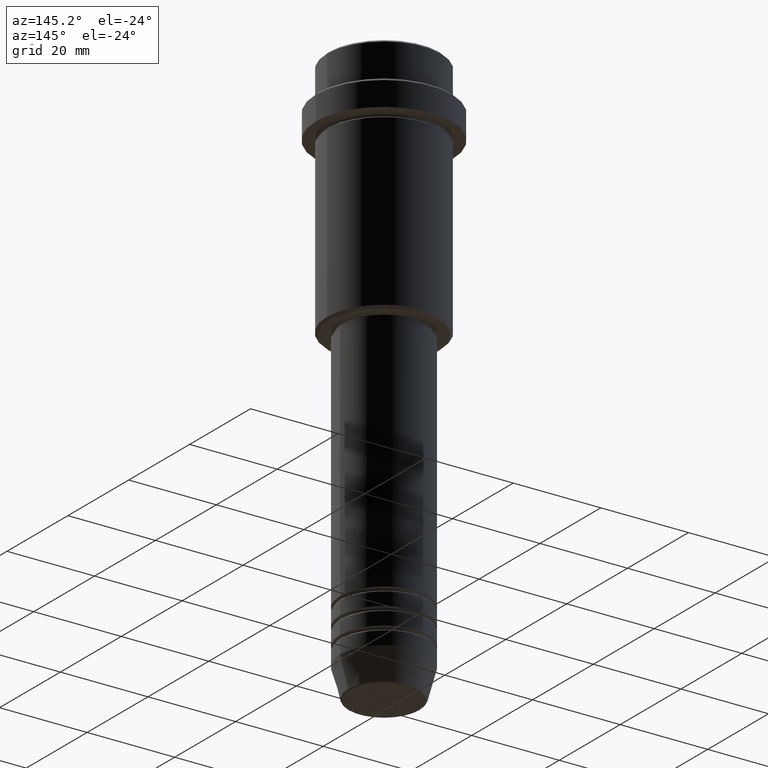
[diagram: clean part render]
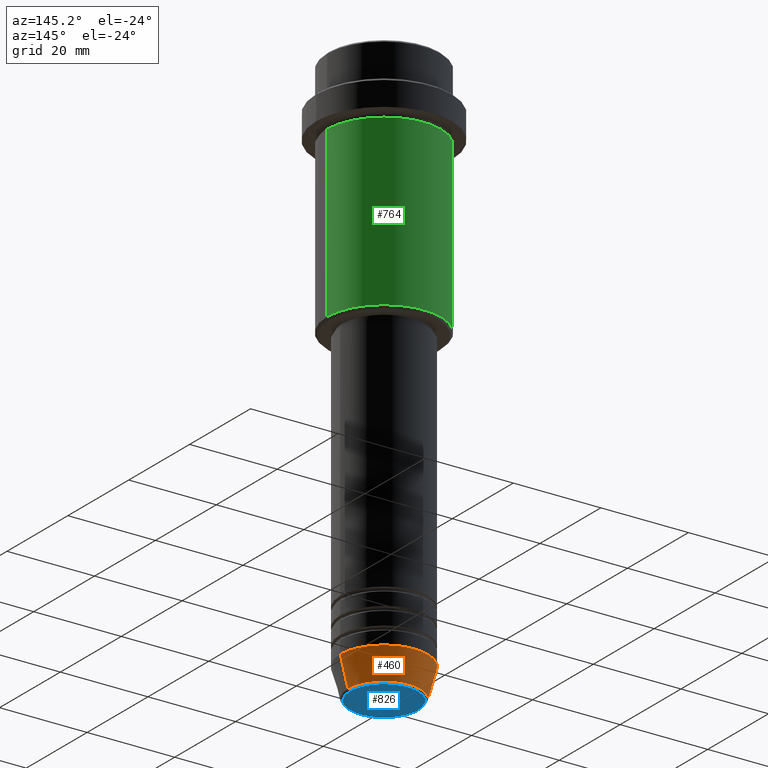
[diagram: same view with three faces highlighted in distinct colors, each labeled with its STEP entity id]
A machine part, auxiliary view with three faces highlighted in distinct colors.
Their STEP definitions:

[orange] entity #460 — the highlighted conical surface has half-angle 15 deg.
#6 = EDGE_CURVE ( 'NONE', #159, #592, #102, .T. ) ;
#56 = CARTESIAN_POINT ( 'NONE',  ( 0.000000000000000000, 0.000000000000000000, -129.6294095225512422 ) ) ;
#73 = DIRECTION ( 'NONE',  ( -0.000000000000000000, -0.000000000000000000, 1.000000000000000000 ) ) ;
#77 = CARTESIAN_POINT ( 'NONE',  ( 0.000000000000000000, 0.000000000000000000, -123.0000000000000000 ) ) ;
#94 = CARTESIAN_POINT ( 'NONE',  ( 0.000000000000000000, 0.000000000000000000, -123.0000000000000000 ) ) ;
#102 = LINE ( 'NONE', #439, #575 ) ;
#121 = EDGE_LOOP ( 'NONE', ( #885, #377, #663, #921 ) ) ;
#159 = VERTEX_POINT ( 'NONE', #583 ) ;
#172 = DIRECTION ( 'NONE',  ( -0.000000000000000000, -0.000000000000000000, 1.000000000000000000 ) ) ;
#369 = CIRCLE ( 'NONE', #949, 8.223655072137191269 ) ;
#377 = ORIENTED_EDGE ( 'NONE', *, *, #1195, .T. ) ;
#412 = DIRECTION ( 'NONE',  ( -0.2588190451025213501, 3.169619151431772337E-17, 0.9659258262890680902 ) ) ;
#429 = DIRECTION ( 'NONE',  ( 1.000000000000000000, 0.000000000000000000, 0.000000000000000000 ) ) ;
#439 = CARTESIAN_POINT ( 'NONE',  ( 10.00000000000000000, 0.000000000000000000, -123.0000000000000000 ) ) ;
#460 = ADVANCED_FACE ( 'NONE', ( #1070 ), #1301, .T. ) ;
#488 = CARTESIAN_POINT ( 'NONE',  ( -10.00000000000000000, 1.224646799147353256E-15, -123.0000000000000000 ) ) ;
#500 = VECTOR ( 'NONE', #412, 1000.000000000000000 ) ;
#523 = DIRECTION ( 'NONE',  ( -0.000000000000000000, -0.000000000000000000, 1.000000000000000000 ) ) ;
#530 = CIRCLE ( 'NONE', #928, 10.00000000000000000 ) ;
#575 = VECTOR ( 'NONE', #1184, 1000.000000000000000 ) ;
#583 = CARTESIAN_POINT ( 'NONE',  ( 8.223655072137191269, 0.000000000000000000, -129.6294095225512422 ) ) ;
#592 = VERTEX_POINT ( 'NONE', #1413 ) ;
#663 = ORIENTED_EDGE ( 'NONE', *, *, #977, .F. ) ;
#800 = EDGE_CURVE ( 'NONE', #159, #1344, #369, .T. ) ;
#885 = ORIENTED_EDGE ( 'NONE', *, *, #800, .T. ) ;
#921 = ORIENTED_EDGE ( 'NONE', *, *, #6, .F. ) ;
#928 = AXIS2_PLACEMENT_3D ( 'NONE', #77, #523, #1094 ) ;
#949 = AXIS2_PLACEMENT_3D ( 'NONE', #56, #172, #1353 ) ;
#977 = EDGE_CURVE ( 'NONE', #592, #1086, #530, .T. ) ;
#1036 = AXIS2_PLACEMENT_3D ( 'NONE', #94, #73, #429 ) ;
#1055 = CARTESIAN_POINT ( 'NONE',  ( -10.00000000000000000, 1.224646799147353256E-15, -123.0000000000000000 ) ) ;
#1070 = FACE_OUTER_BOUND ( 'NONE', #121, .T. ) ;
#1073 = CARTESIAN_POINT ( 'NONE',  ( -8.223655072137191269, 1.115877042642912054E-15, -129.6294095225512422 ) ) ;
#1086 = VERTEX_POINT ( 'NONE', #488 ) ;
#1094 = DIRECTION ( 'NONE',  ( 1.000000000000000000, 0.000000000000000000, 0.000000000000000000 ) ) ;
#1141 = LINE ( 'NONE', #1055, #500 ) ;
#1184 = DIRECTION ( 'NONE',  ( 0.2588190451025213501, 0.000000000000000000, 0.9659258262890680902 ) ) ;
#1195 = EDGE_CURVE ( 'NONE', #1344, #1086, #1141, .T. ) ;
#1301 = CONICAL_SURFACE ( 'NONE', #1036, 10.00000000000000000, 0.2617993877991500740 ) ;
#1344 = VERTEX_POINT ( 'NONE', #1073 ) ;
#1353 = DIRECTION ( 'NONE',  ( 1.000000000000000000, 0.000000000000000000, 0.000000000000000000 ) ) ;
#1413 = CARTESIAN_POINT ( 'NONE',  ( 10.00000000000000000, 0.000000000000000000, -123.0000000000000000 ) ) ;

[blue] entity #826 — the highlighted planar face has unit normal (0, -0, 1).
#10 = CARTESIAN_POINT ( 'NONE',  ( 7.740692158992654726, 0.000000000000000000, -130.0000000000000000 ) ) ;
#65 = CARTESIAN_POINT ( 'NONE',  ( 0.000000000000000000, 0.000000000000000000, -130.0000000000000000 ) ) ;
#131 = ORIENTED_EDGE ( 'NONE', *, *, #1296, .T. ) ;
#151 = VERTEX_POINT ( 'NONE', #10 ) ;
#161 = AXIS2_PLACEMENT_3D ( 'NONE', #65, #490, #940 ) ;
#165 = CARTESIAN_POINT ( 'NONE',  ( -7.740692158992654726, 9.775343368540039135E-16, -130.0000000000000000 ) ) ;
#190 = CARTESIAN_POINT ( 'NONE',  ( 0.000000000000000000, 0.000000000000000000, -130.0000000000000000 ) ) ;
#330 = EDGE_LOOP ( 'NONE', ( #1044, #131 ) ) ;
#413 = CIRCLE ( 'NONE', #606, 7.740692158992654726 ) ;
#490 = DIRECTION ( 'NONE',  ( 0.000000000000000000, -0.000000000000000000, 1.000000000000000000 ) ) ;
#532 = DIRECTION ( 'NONE',  ( 1.000000000000000000, 0.000000000000000000, 0.000000000000000000 ) ) ;
#606 = AXIS2_PLACEMENT_3D ( 'NONE', #655, #1001, #532 ) ;
#643 = AXIS2_PLACEMENT_3D ( 'NONE', #190, #944, #1068 ) ;
#655 = CARTESIAN_POINT ( 'NONE',  ( 0.000000000000000000, 0.000000000000000000, -130.0000000000000000 ) ) ;
#826 = ADVANCED_FACE ( 'NONE', ( #929 ), #1263, .F. ) ;
#929 = FACE_OUTER_BOUND ( 'NONE', #330, .T. ) ;
#940 = DIRECTION ( 'NONE',  ( 1.000000000000000000, 0.000000000000000000, 0.000000000000000000 ) ) ;
#944 = DIRECTION ( 'NONE',  ( 0.000000000000000000, 0.000000000000000000, -1.000000000000000000 ) ) ;
#1001 = DIRECTION ( 'NONE',  ( 0.000000000000000000, 0.000000000000000000, -1.000000000000000000 ) ) ;
#1044 = ORIENTED_EDGE ( 'NONE', *, *, #1346, .T. ) ;
#1068 = DIRECTION ( 'NONE',  ( 1.000000000000000000, 0.000000000000000000, 0.000000000000000000 ) ) ;
#1120 = VERTEX_POINT ( 'NONE', #165 ) ;
#1145 = CIRCLE ( 'NONE', #643, 7.740692158992654726 ) ;
#1263 = PLANE ( 'NONE',  #161 ) ;
#1296 = EDGE_CURVE ( 'NONE', #1120, #151, #1145, .T. ) ;
#1346 = EDGE_CURVE ( 'NONE', #151, #1120, #413, .T. ) ;

[green] entity #764 — the highlighted cylindrical surface (partial cylindrical patch) has radius 13 mm, axis along (-0, -0, 1).
#29 = CARTESIAN_POINT ( 'NONE',  ( 0.000000000000000000, 0.000000000000000000, -54.49999999999996447 ) ) ;
#43 = DIRECTION ( 'NONE',  ( 1.000000000000000000, 0.000000000000000000, 0.000000000000000000 ) ) ;
#51 = ORIENTED_EDGE ( 'NONE', *, *, #588, .F. ) ;
#64 = VERTEX_POINT ( 'NONE', #750 ) ;
#106 = VECTOR ( 'NONE', #192, 1000.000000000000000 ) ;
#136 = LINE ( 'NONE', #1330, #1033 ) ;
#177 = CARTESIAN_POINT ( 'NONE',  ( 13.00000000000000000, 0.000000000000000000, -54.49999999999996447 ) ) ;
#192 = DIRECTION ( 'NONE',  ( -0.000000000000000000, -0.000000000000000000, 1.000000000000000000 ) ) ;
#221 = EDGE_CURVE ( 'NONE', #64, #724, #136, .T. ) ;
#256 = VERTEX_POINT ( 'NONE', #686 ) ;
#285 = DIRECTION ( 'NONE',  ( -0.000000000000000000, -0.000000000000000000, 1.000000000000000000 ) ) ;
#325 = CARTESIAN_POINT ( 'NONE',  ( 13.00000000000000000, 0.000000000000000000, 0.000000000000000000 ) ) ;
#495 = CARTESIAN_POINT ( 'NONE',  ( 0.000000000000000000, 0.000000000000000000, 0.000000000000000000 ) ) ;
#519 = EDGE_CURVE ( 'NONE', #801, #256, #1082, .T. ) ;
#587 = DIRECTION ( 'NONE',  ( -0.000000000000000000, -0.000000000000000000, 1.000000000000000000 ) ) ;
#588 = EDGE_CURVE ( 'NONE', #256, #724, #603, .T. ) ;
#603 = CIRCLE ( 'NONE', #759, 13.00000000000000000 ) ;
#686 = CARTESIAN_POINT ( 'NONE',  ( 13.00000000000000000, 0.000000000000000000, -16.00000000000000000 ) ) ;
#716 = CIRCLE ( 'NONE', #973, 13.00000000000000000 ) ;
#724 = VERTEX_POINT ( 'NONE', #1017 ) ;
#742 = ORIENTED_EDGE ( 'NONE', *, *, #1155, .T. ) ;
#750 = CARTESIAN_POINT ( 'NONE',  ( -13.00000000000000000, 1.592040838891559095E-15, -54.49999999999996447 ) ) ;
#759 = AXIS2_PLACEMENT_3D ( 'NONE', #980, #1193, #1089 ) ;
#764 = ADVANCED_FACE ( 'NONE', ( #1359 ), #955, .T. ) ;
#801 = VERTEX_POINT ( 'NONE', #177 ) ;
#868 = EDGE_LOOP ( 'NONE', ( #742, #1016, #51, #1390 ) ) ;
#955 = CYLINDRICAL_SURFACE ( 'NONE', #1127, 13.00000000000000000 ) ;
#973 = AXIS2_PLACEMENT_3D ( 'NONE', #29, #587, #1023 ) ;
#980 = CARTESIAN_POINT ( 'NONE',  ( 0.000000000000000000, 0.000000000000000000, -16.00000000000000000 ) ) ;
#1016 = ORIENTED_EDGE ( 'NONE', *, *, #221, .T. ) ;
#1017 = CARTESIAN_POINT ( 'NONE',  ( -13.00000000000000000, 1.592040838891559095E-15, -16.00000000000000000 ) ) ;
#1023 = DIRECTION ( 'NONE',  ( -1.000000000000000000, 0.000000000000000000, 0.000000000000000000 ) ) ;
#1033 = VECTOR ( 'NONE', #1326, 1000.000000000000000 ) ;
#1082 = LINE ( 'NONE', #325, #106 ) ;
#1089 = DIRECTION ( 'NONE',  ( 1.000000000000000000, 0.000000000000000000, 0.000000000000000000 ) ) ;
#1127 = AXIS2_PLACEMENT_3D ( 'NONE', #495, #285, #43 ) ;
#1155 = EDGE_CURVE ( 'NONE', #801, #64, #716, .T. ) ;
#1193 = DIRECTION ( 'NONE',  ( -0.000000000000000000, -0.000000000000000000, 1.000000000000000000 ) ) ;
#1326 = DIRECTION ( 'NONE',  ( -0.000000000000000000, -0.000000000000000000, 1.000000000000000000 ) ) ;
#1330 = CARTESIAN_POINT ( 'NONE',  ( -13.00000000000000000, 1.592040838891559095E-15, 0.000000000000000000 ) ) ;
#1359 = FACE_OUTER_BOUND ( 'NONE', #868, .T. ) ;
#1390 = ORIENTED_EDGE ( 'NONE', *, *, #519, .F. ) ;